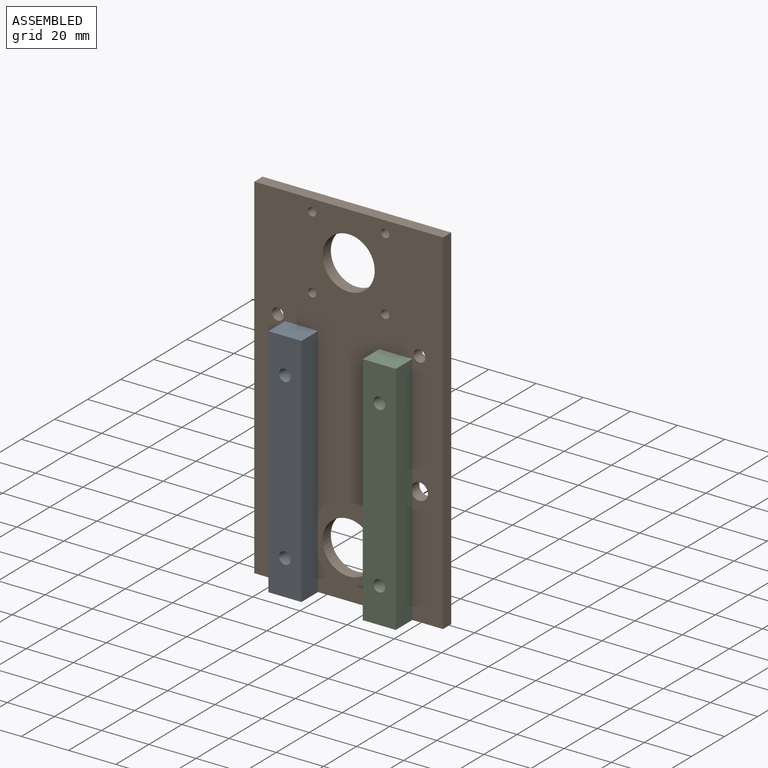
[diagram: assembled view]
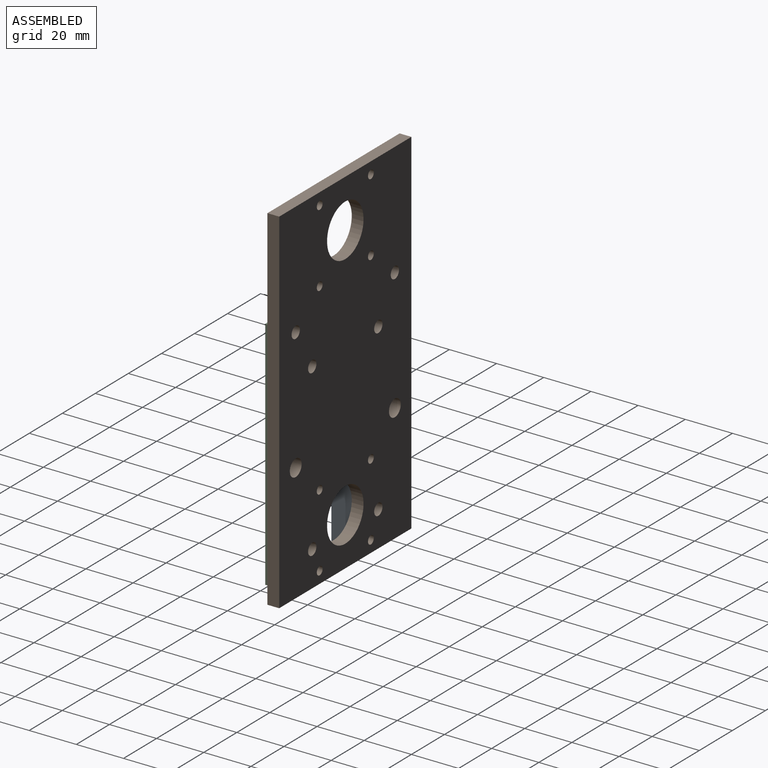
[diagram: assembled view, second angle]
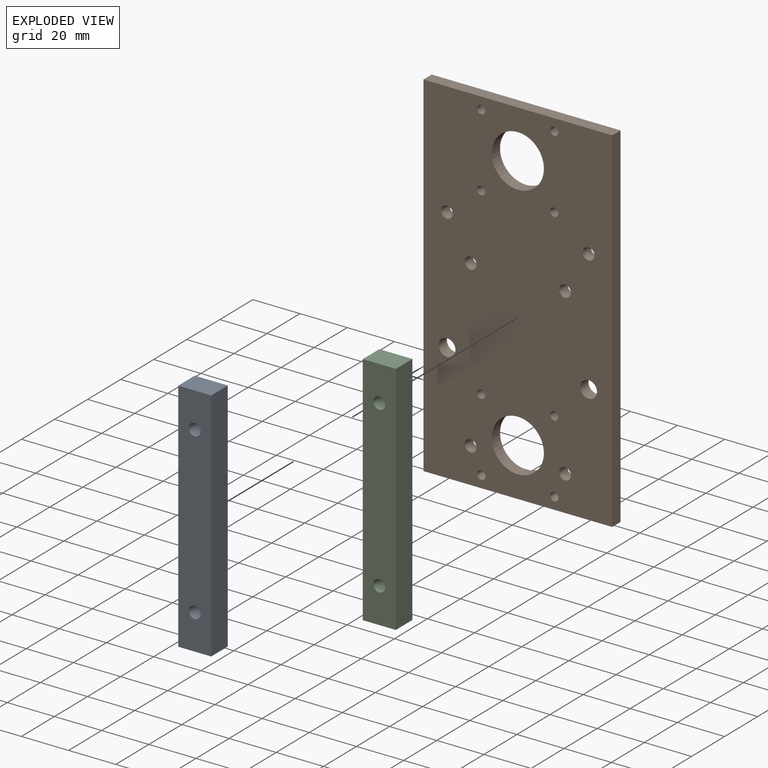
[diagram: exploded view]
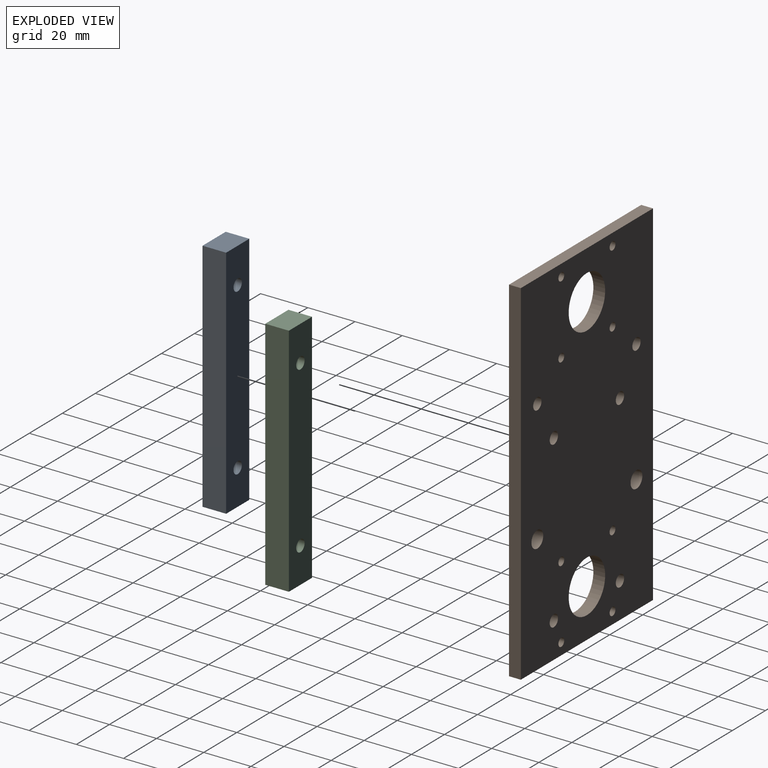
[diagram: exploded view, second angle]
ASSEMBLY  parts=3 mates=2
PART A: 8 faces, bbox 14x10x100 mm
  f0: plane 100x10mm, normal (-1,0,0), area 1000mm2, adj f1,f3,f4,f5
  f1: plane 100x14mm, normal (0,-1,0), area 1360.7mm2, adj f0,f2,f4,f5,f6,f7
  f2: plane 100x10mm, normal (1,0,0), area 1000mm2, adj f1,f3,f4,f5
  f3: plane 100x14mm, normal (0,1,0), area 1360.7mm2, adj f0,f2,f4,f5,f6,f7
  f4: plane 14x10mm, normal (0,0,1), area 140mm2, adj f0,f1,f2,f3
  f5: plane 14x10mm, normal (0,0,-1), area 140mm2, adj f0,f1,f2,f3
  f6: cylinder r=2.5mm len=10mm, axis (0,-1,0), area 157.1mm2, adj f1,f3
  f7: cylinder r=2.5mm len=10mm, axis (0,-1,0), area 157.1mm2, adj f1,f3
PART B: 24 faces, bbox 80x5x150 mm
  f0: plane 150x5mm, normal (-1,0,0), area 750mm2, adj f1,f12,f22,f23
  f1: plane 80x5mm, normal (0,0,-1), area 400mm2, adj f0,f2,f22,f23
  f2: plane 150x5mm, normal (1,0,0), area 750mm2, adj f1,f12,f22,f23
  f3: cylinder r=1.75mm len=5mm, axis (0,1,0), area 55mm2, adj f22,f23
  f4: cylinder r=11.05mm len=22.1mm, axis (0,1,0), area 347.1mm2, adj f22,f23
  f5: cylinder r=11.05mm len=22.1mm, axis (0,1,0), area 347.1mm2, adj f22,f23
  f6: cylinder r=1.75mm len=5mm, axis (0,1,0), area 55mm2, adj f22,f23
  f7: cylinder r=1.75mm len=5mm, axis (0,1,0), area 55mm2, adj f22,f23
  f8: cylinder r=2.5mm len=5mm, axis (0,1,0), area 78.5mm2, adj f22,f23
  f9: cylinder r=2.5mm len=5mm, axis (0,1,0), area 78.5mm2, adj f22,f23
  f10: cylinder r=3.57mm len=7.14mm, axis (0,1,0), area 112.2mm2, adj f22,f23
  f11: cylinder r=3.57mm len=7.14mm, axis (0,1,0), area 112.2mm2, adj f22,f23
  f12: plane 80x5mm, normal (0,0,1), area 400mm2, adj f0,f2,f22,f23
  f13: cylinder r=1.75mm len=5mm, axis (0,1,0), area 55mm2, adj f22,f23
  f14: cylinder r=1.75mm len=5mm, axis (0,1,0), area 55mm2, adj f22,f23
  f15: cylinder r=1.75mm len=5mm, axis (0,1,0), area 55mm2, adj f22,f23
  f16: cylinder r=1.75mm len=5mm, axis (0,1,0), area 55mm2, adj f22,f23
  f17: cylinder r=2.5mm len=5mm, axis (0,1,0), area 78.5mm2, adj f22,f23
  f18: cylinder r=2.5mm len=5mm, axis (0,1,0), area 78.5mm2, adj f22,f23
  f19: cylinder r=2.5mm len=5mm, axis (0,1,0), area 78.5mm2, adj f22,f23
  f20: cylinder r=2.5mm len=5mm, axis (0,1,0), area 78.5mm2, adj f22,f23
  f21: cylinder r=1.75mm len=5mm, axis (0,1,0), area 55mm2, adj f22,f23
  f22: plane 150x80mm, normal (0,-1,0), area 10958mm2, adj f0,f1,f2,f3,f4,f5,f6,f7
  f23: plane 150x80mm, normal (0,1,0), area 10958mm2, adj f0,f1,f2,f3,f4,f5,f6,f7
PART C: same geometry as A
PLACE A t=(-34.53,21.7,-17.18)mm
PLACE B t=(-47.53,36.7,-17.18)mm fixed
PLACE C t=(5.47,21.7,-17.18)mm
MATE fastened B.f20 <-> A.f7  axis (0,-1,0) through (-27.53,31.7,-2.18)mm
MATE fastened B.f18 <-> C.f7  axis (0,-1,0) through (12.47,31.7,-2.18)mm
